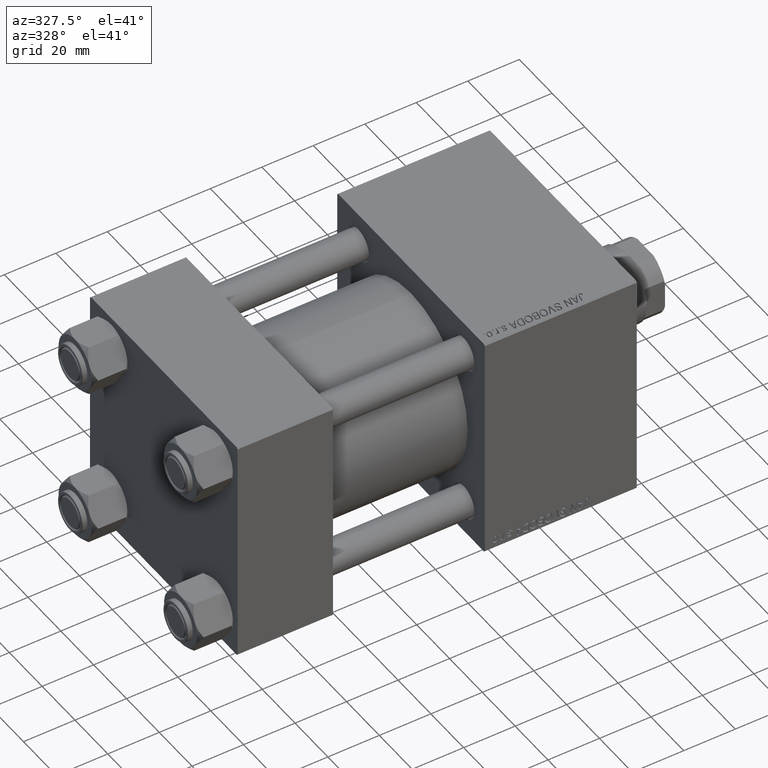
[diagram: clean part render]
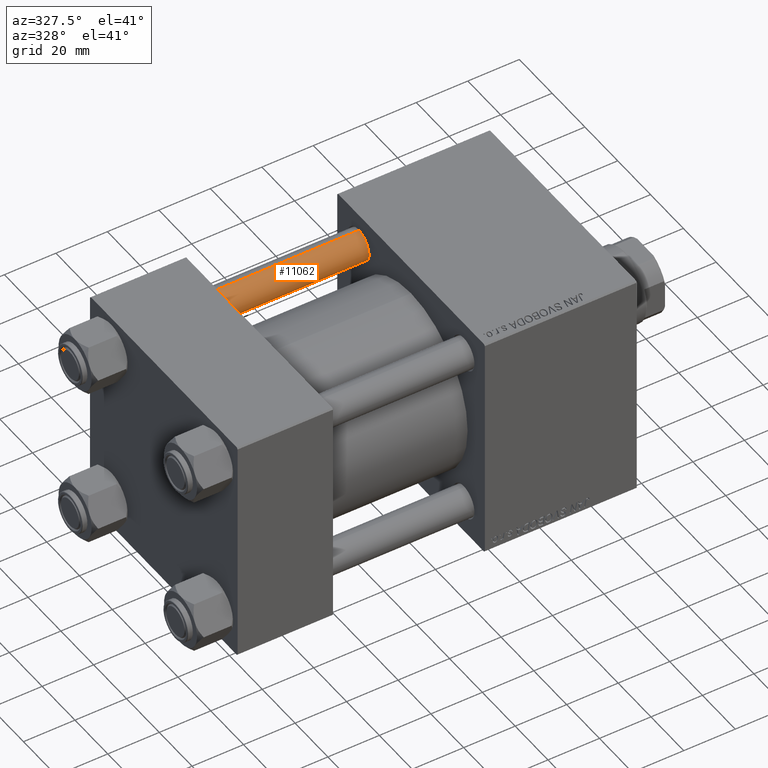
[diagram: same view with one face highlighted and labeled with its STEP entity id]
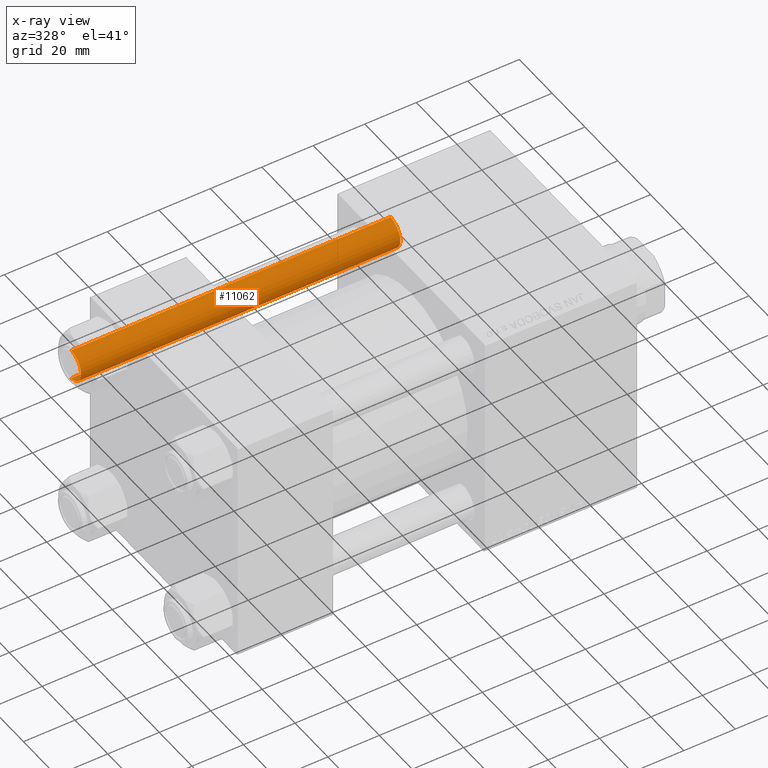
[diagram: x-ray of the same camera — body ghosted, the highlighted face saturated]
A machine part, auxiliary view. The second image highlights one B-rep face of the part: STEP entity #11062.
The next image is the same camera in x-ray: the body ghosted, the highlighted face saturated — about 0% of this face is hidden behind the body in this view.
In plain terms, the highlighted cylindrical surface (edge-blend (fillet) strip) has radius 6 mm, axis along (-1, -0, 0).
Its self-contained STEP definition (entity closure, byte-faithful):
#2283 = DIRECTION ( 'NONE',  ( -0.000000000000000000, -0.000000000000000000, 1.000000000000000000 ) ) ;
#2677 = ORIENTED_EDGE ( 'NONE', *, *, #34907, .F. ) ;
#2846 = CARTESIAN_POINT ( 'NONE',  ( 0.000000000000000000, 0.000000000000000000, 124.5000000000000000 ) ) ;
#5088 = CIRCLE ( 'NONE', #6715, 6.000000000000000888 ) ;
#6715 = AXIS2_PLACEMENT_3D ( 'NONE', #2846, #22160, #11480 ) ;
#7110 = VECTOR ( 'NONE', #23802, 1000.000000000000000 ) ;
#7255 = VERTEX_POINT ( 'NONE', #12416 ) ;
#8642 = EDGE_LOOP ( 'NONE', ( #2677, #39227, #31356, #40299 ) ) ;
#10271 = LINE ( 'NONE', #30344, #25612 ) ;
#11062 = ADVANCED_FACE ( 'NONE', ( #18502 ), #45657, .T. ) ;
#11480 = DIRECTION ( 'NONE',  ( 1.000000000000000000, 0.000000000000000000, 0.000000000000000000 ) ) ;
#12416 = CARTESIAN_POINT ( 'NONE',  ( -6.000000000000000888, 0.000000000000000000, 0.4999999999999865663 ) ) ;
#13256 = CARTESIAN_POINT ( 'NONE',  ( -6.000000000000000888, 0.000000000000000000, 124.5000000000000000 ) ) ;
#14673 = AXIS2_PLACEMENT_3D ( 'NONE', #21803, #38056, #45909 ) ;
#15028 = VERTEX_POINT ( 'NONE', #22767 ) ;
#17289 = CARTESIAN_POINT ( 'NONE',  ( 0.000000000000000000, 0.000000000000000000, 0.4999999999999865663 ) ) ;
#17784 = DIRECTION ( 'NONE',  ( 1.000000000000000000, 0.000000000000000000, 0.000000000000000000 ) ) ;
#18502 = FACE_OUTER_BOUND ( 'NONE', #8642, .T. ) ;
#20503 = CIRCLE ( 'NONE', #47251, 6.000000000000000888 ) ;
#21803 = CARTESIAN_POINT ( 'NONE',  ( 0.000000000000000000, 0.000000000000000000, 125.0000000000000000 ) ) ;
#22160 = DIRECTION ( 'NONE',  ( 0.000000000000000000, 0.000000000000000000, -1.000000000000000000 ) ) ;
#22767 = CARTESIAN_POINT ( 'NONE',  ( 6.000000000000000888, 7.347880794884120722E-16, 0.4999999999999865663 ) ) ;
#23802 = DIRECTION ( 'NONE',  ( -0.000000000000000000, -0.000000000000000000, -1.000000000000000000 ) ) ;
#23838 = VERTEX_POINT ( 'NONE', #13256 ) ;
#25612 = VECTOR ( 'NONE', #25762, 1000.000000000000000 ) ;
#25762 = DIRECTION ( 'NONE',  ( -0.000000000000000000, -0.000000000000000000, -1.000000000000000000 ) ) ;
#28557 = VERTEX_POINT ( 'NONE', #49681 ) ;
#30344 = CARTESIAN_POINT ( 'NONE',  ( -6.000000000000000888, 0.000000000000000000, 125.0000000000000000 ) ) ;
#31356 = ORIENTED_EDGE ( 'NONE', *, *, #31779, .T. ) ;
#31779 = EDGE_CURVE ( 'NONE', #23838, #7255, #10271, .T. ) ;
#34907 = EDGE_CURVE ( 'NONE', #28557, #15028, #46654, .T. ) ;
#38056 = DIRECTION ( 'NONE',  ( -0.000000000000000000, -0.000000000000000000, -1.000000000000000000 ) ) ;
#39227 = ORIENTED_EDGE ( 'NONE', *, *, #48282, .T. ) ;
#39518 = CARTESIAN_POINT ( 'NONE',  ( 6.000000000000000888, 7.347880794884120722E-16, 125.0000000000000000 ) ) ;
#40299 = ORIENTED_EDGE ( 'NONE', *, *, #48462, .T. ) ;
#45657 = CYLINDRICAL_SURFACE ( 'NONE', #14673, 6.000000000000000888 ) ;
#45909 = DIRECTION ( 'NONE',  ( -1.000000000000000000, 0.000000000000000000, 0.000000000000000000 ) ) ;
#46654 = LINE ( 'NONE', #39518, #7110 ) ;
#47251 = AXIS2_PLACEMENT_3D ( 'NONE', #17289, #2283, #17784 ) ;
#48282 = EDGE_CURVE ( 'NONE', #28557, #23838, #5088, .T. ) ;
#48462 = EDGE_CURVE ( 'NONE', #7255, #15028, #20503, .T. ) ;
#49681 = CARTESIAN_POINT ( 'NONE',  ( 6.000000000000000888, 7.347880794884120722E-16, 124.5000000000000000 ) ) ;